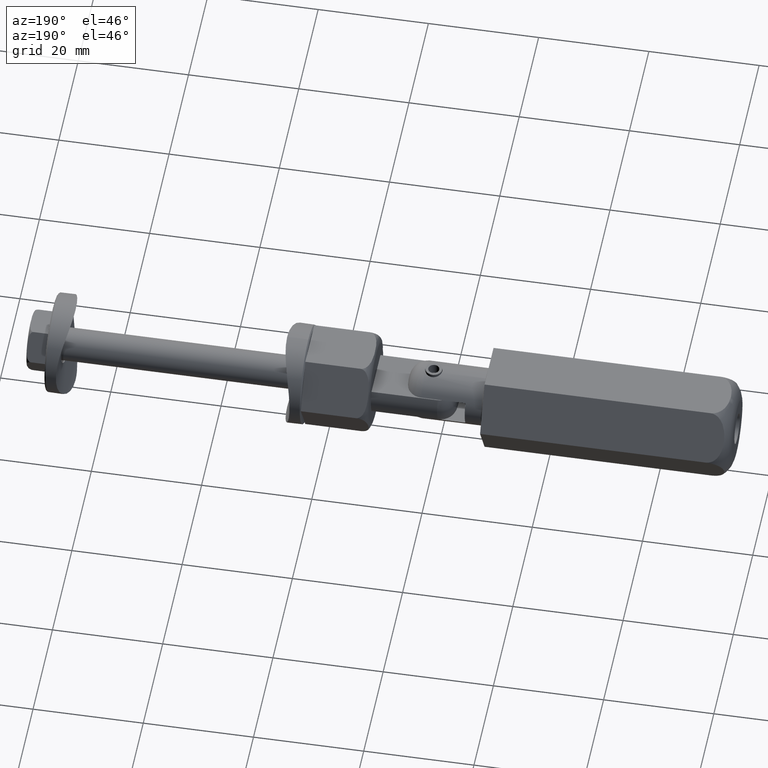
[diagram: clean part render]
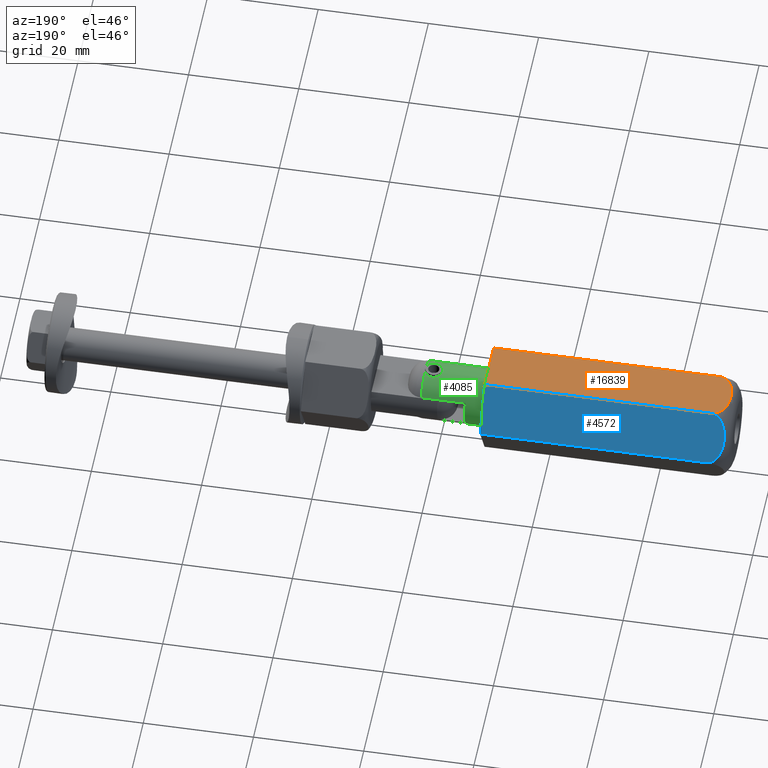
[diagram: same view with three faces highlighted in distinct colors, each labeled with its STEP entity id]
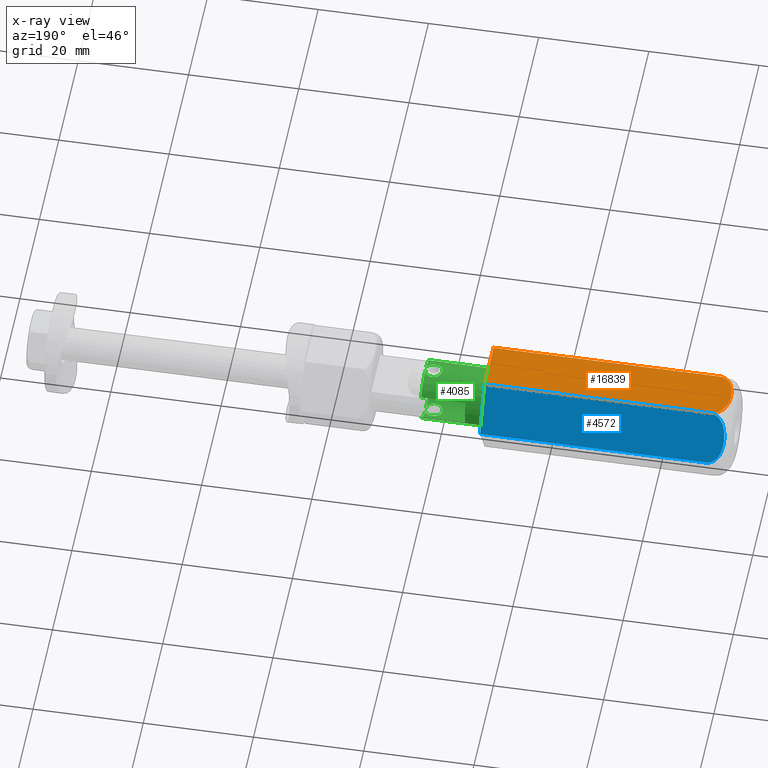
[diagram: x-ray of the same camera — body ghosted, the three highlighted faces saturated]
A machine part, auxiliary view with three faces highlighted in distinct colors.
The next image is the same camera in x-ray (body ghosted, the three faces saturated) — at least one of them is partly hidden behind the body in this view.
Their STEP definitions:

[orange] entity #16839 — the highlighted planar face has unit normal (0, 0, -1).
#320 = CARTESIAN_POINT ( 'NONE',  ( -1.769137840282685528E-15, -9.237604307034015250, 45.00000000000000000 ) ) ;
#350 = DIRECTION ( 'NONE',  ( 0.8660254037844387076, 0.4999999999999999445, 0.000000000000000000 ) ) ;
#480 = VERTEX_POINT ( 'NONE', #1590 ) ;
#558 = CARTESIAN_POINT ( 'NONE',  ( 0.7485458506218656272, -8.805431158676700676, 42.75669433309089840 ) ) ;
#613 = CARTESIAN_POINT ( 'NONE',  ( 3.572823925020929270, -7.174833452156046398, 43.88225172653203288 ) ) ;
#674 = CARTESIAN_POINT ( 'NONE',  ( 0.1991618949743121647, -9.122618133358280090, 41.97415419835533612 ) ) ;
#750 = ORIENTED_EDGE ( 'NONE', *, *, #12425, .T. ) ;
#1097 = CARTESIAN_POINT ( 'NONE',  ( -1.769137840282685528E-15, -9.237604307034015250, 40.99999999999999289 ) ) ;
#1373 = DIRECTION ( 'NONE',  ( -0.4999999999999999445, 0.8660254037844387076, 0.000000000000000000 ) ) ;
#1590 = CARTESIAN_POINT ( 'NONE',  ( -1.769137840282685528E-15, -9.237604307034015250, 0.000000000000000000 ) ) ;
#1953 = CARTESIAN_POINT ( 'NONE',  ( -1.769137840282685528E-15, -9.237604307034015250, 40.99999999999999289 ) ) ;
#2140 = CARTESIAN_POINT ( 'NONE',  ( 0.5871213750183053026, -8.898629623120211107, 42.58301006518296106 ) ) ;
#3438 = CARTESIAN_POINT ( 'NONE',  ( 1.673678568543905953, -8.271305534948281135, 43.40554057758357942 ) ) ;
#4403 = CARTESIAN_POINT ( 'NONE',  ( 7.250281961278693288, -5.051652064989072599, 42.74896336844649625 ) ) ;
#4527 = CARTESIAN_POINT ( 'NONE',  ( 8.000000000000012434, -4.618802153517002296, 41.25468682717439606 ) ) ;
#4825 = EDGE_CURVE ( 'NONE', #10863, #7293, #10417, .T. ) ;
#5169 = LINE ( 'NONE', #10312, #14367 ) ;
#5644 = DIRECTION ( 'NONE',  ( -0.8660254037844385966, -0.4999999999999998890, 0.000000000000000000 ) ) ;
#5768 = PLANE ( 'NONE',  #5848 ) ;
#5848 = AXIS2_PLACEMENT_3D ( 'NONE', #14163, #1373, #5644 ) ;
#5992 = CARTESIAN_POINT ( 'NONE',  ( 8.000000000000005329, -4.618802153517001408, 40.99999999999999289 ) ) ;
#6008 = FACE_OUTER_BOUND ( 'NONE', #18007, .T. ) ;
#6169 = CARTESIAN_POINT ( 'NONE',  ( 0.04306599320267236880, -9.212740144265529452, 41.50668772745576263 ) ) ;
#6295 = CARTESIAN_POINT ( 'NONE',  ( 0.3138699201869741828, -9.056391424123539480, 42.19438614450636749 ) ) ;
#7293 = VERTEX_POINT ( 'NONE', #1097 ) ;
#7411 = CARTESIAN_POINT ( 'NONE',  ( 7.841277760696346633, -4.710440481105351296, 41.85383690137562240 ) ) ;
#7474 = CARTESIAN_POINT ( 'NONE',  ( 7.682883363200835980, -4.801889529137512547, 42.18434787125504926 ) ) ;
#7718 = CARTESIAN_POINT ( 'NONE',  ( 3.788286301990712257, -7.050436190812304105, 43.89306722057520460 ) ) ;
#7725 = DIRECTION ( 'NONE',  ( -0.000000000000000000, -0.000000000000000000, -1.000000000000000000 ) ) ;
#7778 = CARTESIAN_POINT ( 'NONE',  ( -9.563346434566268250E-13, -9.237604307034564144, 41.25421066781149904 ) ) ;
#7950 = ORIENTED_EDGE ( 'NONE', *, *, #13762, .F. ) ;
#8617 = CARTESIAN_POINT ( 'NONE',  ( 6.907344896271229828, -5.249646871786233682, 43.05448962635249899 ) ) ;
#8846 = DIRECTION ( 'NONE',  ( -0.000000000000000000, -0.000000000000000000, -1.000000000000000000 ) ) ;
#8929 = VERTEX_POINT ( 'NONE', #14630 ) ;
#9047 = CARTESIAN_POINT ( 'NONE',  ( 4.433623702003368194, -6.677850469196864758, 43.89271815893955875 ) ) ;
#9187 = ORIENTED_EDGE ( 'NONE', *, *, #17669, .T. ) ;
#10013 = CARTESIAN_POINT ( 'NONE',  ( 6.717923926699392645, -5.359009119558693968, 43.18472171354525102 ) ) ;
#10086 = CARTESIAN_POINT ( 'NONE',  ( 7.620672937511835165, -4.837806735155458782, 42.28713500885484677 ) ) ;
#10312 = CARTESIAN_POINT ( 'NONE',  ( 8.000000000000000000, -4.618802153517008513, 45.00000000000000000 ) ) ;
#10417 = B_SPLINE_CURVE_WITH_KNOTS ( 'NONE', 3,
 ( #5992, #4527, #15772, #7411, #15583, #7474, #10086, #17164, #12787, #4403, #16977, #8617, #10013, #11932, #17405, #14558, #9047, #7718, #613, #13098, #16128, #11686, #10516, #11803, #3438, #14613, #14675, #558, #2140, #6295, #674, #6169, #7778, #1953 ),
 .UNSPECIFIED., .F., .F.,
 ( 4, 2, 2, 2, 2, 2, 2, 2, 2, 2, 2, 2, 2, 2, 2, 2, 4 ),
 ( 1.959244678688549525E-07, 0.0007486943119338412226, 0.001122943505666818692, 0.001497192699399795728, 0.001871441893132772981, 0.002245691086865750016, 0.002994189474331693246, 0.004491186249263580572, 0.005988183024195467899, 0.006736681411661409394, 0.007485179799127351756, 0.008233678186593292384, 0.008982176574059233878, 0.009730674961525175373, 0.01047917334899111860, 0.01122767173645706010, 0.01197617012392300159 ),
 .UNSPECIFIED. ) ;
#10516 = CARTESIAN_POINT ( 'NONE',  ( 2.289826092884529540, -7.915572595909701192, 43.64835411522503250 ) ) ;
#10863 = VERTEX_POINT ( 'NONE', #15952 ) ;
#11686 = CARTESIAN_POINT ( 'NONE',  ( 2.499462744038905893, -7.794538818933711255, 43.70835956831879798 ) ) ;
#11803 = CARTESIAN_POINT ( 'NONE',  ( 1.877673606444074883, -8.153528944903269959, 43.49732817391966222 ) ) ;
#11932 = CARTESIAN_POINT ( 'NONE',  ( 6.132795820946559395, -5.696832988925506491, 43.51479239094585694 ) ) ;
#12425 = EDGE_CURVE ( 'NONE', #480, #8929, #17826, .T. ) ;
#12787 = CARTESIAN_POINT ( 'NONE',  ( 7.408064604950721055, -4.960556213191575026, 42.57629628855898574 ) ) ;
#13098 = CARTESIAN_POINT ( 'NONE',  ( 3.141149563985607074, -7.424060760702047901, 43.83720161989546682 ) ) ;
#13242 = VECTOR ( 'NONE', #7725, 1000.000000000000000 ) ;
#13677 = LINE ( 'NONE', #320, #13242 ) ;
#13762 = EDGE_CURVE ( 'NONE', #10863, #8929, #5169, .T. ) ;
#14163 = CARTESIAN_POINT ( 'NONE',  ( -1.769137840282685528E-15, -9.237604307034015250, 45.00000000000000000 ) ) ;
#14367 = VECTOR ( 'NONE', #8846, 1000.000000000000000 ) ;
#14558 = CARTESIAN_POINT ( 'NONE',  ( 4.862494959047610976, -6.430241533494677419, 43.85019408832059895 ) ) ;
#14613 = CARTESIAN_POINT ( 'NONE',  ( 1.282681821586987736, -8.497047612056125132, 43.18514700619215319 ) ) ;
#14630 = CARTESIAN_POINT ( 'NONE',  ( 8.000000000000000000, -4.618802153517008513, 0.000000000000000000 ) ) ;
#14675 = CARTESIAN_POINT ( 'NONE',  ( 1.096546558772386160, -8.604512856147820798, 43.05745001845091480 ) ) ;
#15583 = CARTESIAN_POINT ( 'NONE',  ( 7.793015511654325600, -4.738304703581460942, 41.96820820789258022 ) ) ;
#15772 = CARTESIAN_POINT ( 'NONE',  ( 7.958754141321140452, -4.642615461128206000, 41.49961142492604438 ) ) ;
#15952 = CARTESIAN_POINT ( 'NONE',  ( 8.000000000000005329, -4.618802153517001408, 40.99999999999999289 ) ) ;
#16128 = CARTESIAN_POINT ( 'NONE',  ( 2.924613554202805332, -7.549077884239397740, 43.80277072359240975 ) ) ;
#16514 = VECTOR ( 'NONE', #350, 1000.000000000000000 ) ;
#16839 = ADVANCED_FACE ( 'NONE', ( #6008 ), #5768, .F. ) ;
#16977 = CARTESIAN_POINT ( 'NONE',  ( 7.167243481371884606, -5.099594353716367046, 42.82926552586378932 ) ) ;
#17164 = CARTESIAN_POINT ( 'NONE',  ( 7.483326103351932268, -4.917103966830023154, 42.48315152179991827 ) ) ;
#17382 = CARTESIAN_POINT ( 'NONE',  ( -1.769137840282685528E-15, -9.237604307034015250, 0.000000000000000000 ) ) ;
#17405 = CARTESIAN_POINT ( 'NONE',  ( 5.716877360636622107, -5.936963623946379442, 43.66016978902230505 ) ) ;
#17669 = EDGE_CURVE ( 'NONE', #7293, #480, #13677, .T. ) ;
#17826 = LINE ( 'NONE', #17382, #16514 ) ;
#18007 = EDGE_LOOP ( 'NONE', ( #7950, #18035, #9187, #750 ) ) ;
#18035 = ORIENTED_EDGE ( 'NONE', *, *, #4825, .T. ) ;

[blue] entity #4572 — the highlighted planar face has unit normal (-0, -0.866, -0.5).
#145 = EDGE_CURVE ( 'NONE', #8929, #4853, #18096, .T. ) ;
#422 = CARTESIAN_POINT ( 'NONE',  ( 8.000000000000001776, 3.940089428908967406, 42.58398726992948014 ) ) ;
#487 = CARTESIAN_POINT ( 'NONE',  ( 8.000000000000001776, 0.4890779393766487293, 43.89370197131172091 ) ) ;
#552 = CARTESIAN_POINT ( 'NONE',  ( 8.000000000000000000, -2.692139927352141804, 43.40298864242615196 ) ) ;
#913 = EDGE_LOOP ( 'NONE', ( #4020, #9609, #17634, #9438 ) ) ;
#1496 = VECTOR ( 'NONE', #12865, 1000.000000000000000 ) ;
#1546 = CARTESIAN_POINT ( 'NONE',  ( 8.000000000000000000, -4.618802153517008513, 0.000000000000000000 ) ) ;
#1831 = CARTESIAN_POINT ( 'NONE',  ( 8.000000000000001776, -0.5144506521284709644, 43.89218239036202363 ) ) ;
#1946 = CARTESIAN_POINT ( 'NONE',  ( 8.000000000000001776, 3.753179266618492438, 42.75771142931566260 ) ) ;
#2134 = AXIS2_PLACEMENT_3D ( 'NONE', #9538, #4932, #7667 ) ;
#3310 = CARTESIAN_POINT ( 'NONE',  ( 8.000000000000003553, 3.352786703269217572, 43.05726288905571408 ) ) ;
#4020 = ORIENTED_EDGE ( 'NONE', *, *, #10195, .F. ) ;
#4572 = ADVANCED_FACE ( 'NONE', ( #14696 ), #7441, .F. ) ;
#4713 = CARTESIAN_POINT ( 'NONE',  ( 8.000000000000001776, 0.9924995606820768979, 43.85060076674451324 ) ) ;
#4776 = CARTESIAN_POINT ( 'NONE',  ( 8.000000000000000000, -3.358808912604403840, 43.05353553000416866 ) ) ;
#4853 = VERTEX_POINT ( 'NONE', #9394 ) ;
#4932 = DIRECTION ( 'NONE',  ( -1.000000000000000000, 1.877893248421449282E-16, 0.000000000000000000 ) ) ;
#5169 = LINE ( 'NONE', #10312, #14367 ) ;
#5209 = VECTOR ( 'NONE', #17570, 1000.000000000000000 ) ;
#5922 = CARTESIAN_POINT ( 'NONE',  ( 8.000000000000010658, 4.618802153516997855, 40.99999999999999289 ) ) ;
#6046 = CARTESIAN_POINT ( 'NONE',  ( 8.000000000000001776, 4.434660508883089491, 41.85564048095637446 ) ) ;
#6160 = CARTESIAN_POINT ( 'NONE',  ( 8.000000000000000000, -3.942926262521257552, 42.58076650204093738 ) ) ;
#6472 = CARTESIAN_POINT ( 'NONE',  ( 8.000000000000001776, -4.618802153517020948, 41.25059084096967865 ) ) ;
#7405 = CARTESIAN_POINT ( 'NONE',  ( 8.000000000000000000, 4.569904609268164108, 41.50382558259673260 ) ) ;
#7422 = EDGE_CURVE ( 'NONE', #9886, #10863, #16716, .T. ) ;
#7441 = PLANE ( 'NONE',  #2134 ) ;
#7469 = CARTESIAN_POINT ( 'NONE',  ( 7.999999999999998224, -1.009007826064906688, 43.84811376209939482 ) ) ;
#7667 = DIRECTION ( 'NONE',  ( -1.877893248421449282E-16, -1.000000000000000000, 0.000000000000000000 ) ) ;
#7821 = CARTESIAN_POINT ( 'NONE',  ( 8.000000000000001776, 4.618802153517005848, 45.00000000000000000 ) ) ;
#8803 = CARTESIAN_POINT ( 'NONE',  ( 8.000000000000003553, 4.618802153517022724, 41.25024699729215172 ) ) ;
#8846 = DIRECTION ( 'NONE',  ( -0.000000000000000000, -0.000000000000000000, -1.000000000000000000 ) ) ;
#8861 = CARTESIAN_POINT ( 'NONE',  ( 8.000000000000003553, 3.135350852326893367, 43.18648338403921372 ) ) ;
#8917 = CARTESIAN_POINT ( 'NONE',  ( 8.000000000000001776, 4.178113488848268275, 42.29076242024786580 ) ) ;
#8929 = VERTEX_POINT ( 'NONE', #14630 ) ;
#8980 = CARTESIAN_POINT ( 'NONE',  ( 8.000000000000000000, -4.256979566995696906, 42.19333027108968537 ) ) ;
#9394 = CARTESIAN_POINT ( 'NONE',  ( 8.000000000000001776, 4.618802153517005848, 0.000000000000000000 ) ) ;
#9438 = ORIENTED_EDGE ( 'NONE', *, *, #145, .T. ) ;
#9538 = CARTESIAN_POINT ( 'NONE',  ( 8.000000000000000000, -4.618802153517008513, 45.00000000000000000 ) ) ;
#9609 = ORIENTED_EDGE ( 'NONE', *, *, #7422, .T. ) ;
#9886 = VERTEX_POINT ( 'NONE', #17013 ) ;
#10078 = CARTESIAN_POINT ( 'NONE',  ( 8.000000000000000000, -4.389744536411927633, 41.97252492910909893 ) ) ;
#10195 = EDGE_CURVE ( 'NONE', #9886, #4853, #12208, .T. ) ;
#10204 = CARTESIAN_POINT ( 'NONE',  ( 8.000000000000000000, 1.979118624766899037, 43.66106815119476892 ) ) ;
#10312 = CARTESIAN_POINT ( 'NONE',  ( 8.000000000000000000, -4.618802153517008513, 45.00000000000000000 ) ) ;
#10326 = CARTESIAN_POINT ( 'NONE',  ( 8.000000000000000000, -3.141993594239491205, 43.18269222871840185 ) ) ;
#10643 = CARTESIAN_POINT ( 'NONE',  ( 8.000000000000001776, -4.569835532510474252, 41.50396219016342769 ) ) ;
#10863 = VERTEX_POINT ( 'NONE', #15952 ) ;
#11559 = CARTESIAN_POINT ( 'NONE',  ( 8.000000000000001776, 4.378802633394879962, 41.97022636655232475 ) ) ;
#12208 = LINE ( 'NONE', #7821, #5209 ) ;
#12865 = DIRECTION ( 'NONE',  ( 1.877893248421449036E-16, 1.000000000000000000, 0.000000000000000000 ) ) ;
#13093 = CARTESIAN_POINT ( 'NONE',  ( 8.000000000000000000, -1.979342744620956385, 43.64712767648819636 ) ) ;
#13762 = EDGE_CURVE ( 'NONE', #10863, #8929, #5169, .T. ) ;
#14367 = VECTOR ( 'NONE', #8846, 1000.000000000000000 ) ;
#14553 = CARTESIAN_POINT ( 'NONE',  ( 8.000000000000000000, -3.761260575362187275, 42.75085960661601092 ) ) ;
#14630 = CARTESIAN_POINT ( 'NONE',  ( 8.000000000000000000, -4.618802153517008513, 0.000000000000000000 ) ) ;
#14696 = FACE_OUTER_BOUND ( 'NONE', #913, .T. ) ;
#15822 = CARTESIAN_POINT ( 'NONE',  ( 8.000000000000000000, 4.250374132032897379, 42.18784112892849691 ) ) ;
#15883 = CARTESIAN_POINT ( 'NONE',  ( 8.000000000000000000, -2.455983556934949963, 43.49539654174239445 ) ) ;
#15952 = CARTESIAN_POINT ( 'NONE',  ( 8.000000000000005329, -4.618802153517001408, 40.99999999999999289 ) ) ;
#16716 = B_SPLINE_CURVE_WITH_KNOTS ( 'NONE', 3,
 ( #5922, #8803, #7405, #6046, #11559, #15822, #8917, #422, #1946, #3310, #8861, #17338, #10204, #4713, #487, #1831, #7469, #17215, #13093, #15883, #552, #10326, #4776, #14553, #6160, #8980, #10078, #10643, #6472, #17523 ),
 .UNSPECIFIED., .F., .F.,
 ( 4, 2, 2, 2, 2, 2, 2, 2, 2, 2, 2, 2, 2, 2, 4 ),
 ( 0.01782495609688745583, 0.01856757966647357497, 0.01893889145126662760, 0.01931020323605967676, 0.02005282680564577855, 0.02079545037523188034, 0.02228069751440409085, 0.02376594465357630137, 0.02525119179274851536, 0.02599381536233462062, 0.02673643893192072588, 0.02747906250150683460, 0.02822168607109293986, 0.02896430964067904512, 0.02970693321026515038 ),
 .UNSPECIFIED. ) ;
#17013 = CARTESIAN_POINT ( 'NONE',  ( 8.000000000000010658, 4.618802153516997855, 40.99999999999999289 ) ) ;
#17215 = CARTESIAN_POINT ( 'NONE',  ( 7.999999999999998224, -1.738355429357148818, 43.70696732715698118 ) ) ;
#17338 = CARTESIAN_POINT ( 'NONE',  ( 8.000000000000001776, 2.456531719451064522, 43.51726223093300661 ) ) ;
#17523 = CARTESIAN_POINT ( 'NONE',  ( 8.000000000000005329, -4.618802153517001408, 40.99999999999999289 ) ) ;
#17570 = DIRECTION ( 'NONE',  ( -0.000000000000000000, -0.000000000000000000, -1.000000000000000000 ) ) ;
#17634 = ORIENTED_EDGE ( 'NONE', *, *, #13762, .T. ) ;
#18096 = LINE ( 'NONE', #1546, #1496 ) ;

[green] entity #4085 — the highlighted cylindrical surface (bore or boss wall) has radius 5.2 mm, axis along (-1, -0, 0).
#28 = CARTESIAN_POINT ( 'NONE',  ( -4.963419302966182833, 1.551308160510958878, 19.69710669182161311 ) ) ;
#89 = CIRCLE ( 'NONE', #1866, 5.200000000000000178 ) ;
#119 = B_SPLINE_CURVE_WITH_KNOTS ( 'NONE', 3,
 ( #9439, #12314, #5350, #16510, #1193, #15180, #6815, #8208, #17963, #13866, #8261, #11045, #2654, #18025, #12424, #9673, #4174, #14040, #13977, #9918, #11291, #13920, #12554, #8510, #2897, #1368, #5525, #1484, #8388, #4110, #12678, #3022, #5583, #14098, #28, #7121, #12747, #9795, #14159, #11163 ),
 .UNSPECIFIED., .F., .F.,
 ( 4, 2, 2, 2, 2, 2, 2, 2, 2, 2, 2, 2, 2, 2, 2, 2, 2, 2, 2, 4 ),
 ( 0.000000000000000000, 0.0005598525982423902024, 0.001119705196484780839, 0.001399631495605971549, 0.001679557794727162476, 0.001959484093848353620, 0.002239410392969544330, 0.002799262991211936159, 0.003359115589454328421, 0.003918968187696721117, 0.004478820785939112946, 0.004758747085060309294, 0.005038673384181505642, 0.005318599683302701123, 0.005598525982423897471, 0.006158378580666290167, 0.006718231178908681996, 0.007278083777151073824, 0.007837936375393466520, 0.008957641571878251913 ),
 .UNSPECIFIED. ) ;
#193 = EDGE_CURVE ( 'NONE', #3478, #13182, #12030, .T. ) ;
#341 = EDGE_CURVE ( 'NONE', #15872, #3754, #6065, .T. ) ;
#658 = CARTESIAN_POINT ( 'NONE',  ( 4.992942698729907924, -1.455625987037639568, 18.95552469952957964 ) ) ;
#729 = CARTESIAN_POINT ( 'NONE',  ( 5.012657568153981558, -1.387386056122674738, 20.23568348984982634 ) ) ;
#797 = CARTESIAN_POINT ( 'NONE',  ( 5.152267510464767497, 0.7242857316404366363, 18.13711539098697756 ) ) ;
#831 = VERTEX_POINT ( 'NONE', #11232 ) ;
#877 = DIRECTION ( 'NONE',  ( 1.000000000000000000, 0.000000000000000000, 0.000000000000000000 ) ) ;
#1193 = CARTESIAN_POINT ( 'NONE',  ( -5.065918281851200966, -1.178172400145128806, 20.54421818276737710 ) ) ;
#1226 = LINE ( 'NONE', #14269, #16105 ) ;
#1352 = FACE_OUTER_BOUND ( 'NONE', #13778, .T. ) ;
#1368 = CARTESIAN_POINT ( 'NONE',  ( -5.161807639010361548, 0.6351664433079620142, 18.10304574700393232 ) ) ;
#1484 = CARTESIAN_POINT ( 'NONE',  ( -5.125743644908775210, 0.8793316977657467115, 18.24019997671928550 ) ) ;
#1644 = AXIS2_PLACEMENT_3D ( 'NONE', #3927, #2532, #12365 ) ;
#1866 = AXIS2_PLACEMENT_3D ( 'NONE', #17438, #6456, #9084 ) ;
#1980 = VECTOR ( 'NONE', #13285, 1000.000000000000000 ) ;
#2021 = CARTESIAN_POINT ( 'NONE',  ( -2.499999999999999556, -4.559605246071198437, 13.00000000000000000 ) ) ;
#2025 = ORIENTED_EDGE ( 'NONE', *, *, #16414, .F. ) ;
#2048 = VECTOR ( 'NONE', #11107, 1000.000000000000000 ) ;
#2127 = CARTESIAN_POINT ( 'NONE',  ( 5.092303615408305895, -1.074591897270581686, 20.69725271704484726 ) ) ;
#2137 = CARTESIAN_POINT ( 'NONE',  ( -5.185315805233089215, 0.3905124837953182215, 21.01999999999999957 ) ) ;
#2185 = CARTESIAN_POINT ( 'NONE',  ( 5.189232498523272064, 0.3772484548923304426, 18.00519200352507099 ) ) ;
#2198 = VERTEX_POINT ( 'NONE', #13030 ) ;
#2266 = VECTOR ( 'NONE', #17290, 1000.000000000000000 ) ;
#2281 = VERTEX_POINT ( 'NONE', #17745 ) ;
#2308 = CARTESIAN_POINT ( 'NONE',  ( 4.963832099636205974, 1.549362687245473102, 19.41643936243161761 ) ) ;
#2352 = EDGE_CURVE ( 'NONE', #3478, #8155, #5752, .T. ) ;
#2532 = DIRECTION ( 'NONE',  ( 0.000000000000000000, 0.000000000000000000, 1.000000000000000000 ) ) ;
#2632 = EDGE_CURVE ( 'NONE', #4849, #2198, #17752, .T. ) ;
#2654 = CARTESIAN_POINT ( 'NONE',  ( -4.963832099636203310, -1.549362687245472214, 19.41643936243161406 ) ) ;
#2691 = AXIS2_PLACEMENT_3D ( 'NONE', #17654, #3512, #6499 ) ;
#2897 = CARTESIAN_POINT ( 'NONE',  ( -5.180293827615185975, 0.4607063841778071822, 18.03711585301954656 ) ) ;
#3022 = CARTESIAN_POINT ( 'NONE',  ( -4.992942698729907924, 1.455625987037639568, 18.95552469952957964 ) ) ;
#3429 = CARTESIAN_POINT ( 'NONE',  ( 2.500000000000000444, -4.559605246071198437, 24.01999999999999957 ) ) ;
#3439 = EDGE_CURVE ( 'NONE', #2281, #2281, #6828, .T. ) ;
#3478 = VERTEX_POINT ( 'NONE', #3986 ) ;
#3512 = DIRECTION ( 'NONE',  ( -0.000000000000000000, -0.000000000000000000, -1.000000000000000000 ) ) ;
#3538 = CARTESIAN_POINT ( 'NONE',  ( 5.157779211577867784, -0.7561497943237692754, 20.92480937713154532 ) ) ;
#3654 = CARTESIAN_POINT ( 'NONE',  ( 5.125720386140659279, 0.8870922200615721787, 18.23561029644231013 ) ) ;
#3706 = CARTESIAN_POINT ( 'NONE',  ( 5.112242260058695642, -0.9539653343543746944, 18.29480758178761945 ) ) ;
#3754 = VERTEX_POINT ( 'NONE', #9374 ) ;
#3927 = CARTESIAN_POINT ( 'NONE',  ( 0.000000000000000000, 0.000000000000000000, 10.00000000000000000 ) ) ;
#3948 = ORIENTED_EDGE ( 'NONE', *, *, #12827, .T. ) ;
#3986 = CARTESIAN_POINT ( 'NONE',  ( 2.499999999999999556, 4.559605246071198437, 13.00000000000000000 ) ) ;
#4085 = ADVANCED_FACE ( 'NONE', ( #5508, #1352 ), #16234, .T. ) ;
#4110 = CARTESIAN_POINT ( 'NONE',  ( -5.070182908683328549, 1.163412399459048618, 18.47905962132104563 ) ) ;
#4174 = CARTESIAN_POINT ( 'NONE',  ( -5.070019454879777676, -1.163978011361160192, 18.47993043186212958 ) ) ;
#4245 = ORIENTED_EDGE ( 'NONE', *, *, #2632, .T. ) ;
#4351 = LINE ( 'NONE', #3429, #1980 ) ;
#4648 = CARTESIAN_POINT ( 'NONE',  ( 5.185315805233082109, 0.3905124837953178329, 21.01999999999999957 ) ) ;
#4661 = CARTESIAN_POINT ( 'NONE',  ( -2.500000000000000444, 4.559605246071198437, 21.01999999999999957 ) ) ;
#4721 = CARTESIAN_POINT ( 'NONE',  ( -2.499999999999999556, -4.559605246071198437, 24.01999999999999957 ) ) ;
#4849 = VERTEX_POINT ( 'NONE', #2021 ) ;
#5001 = CARTESIAN_POINT ( 'NONE',  ( 5.197476565135879412, -0.1864769919608537663, 17.97840258895527654 ) ) ;
#5021 = ORIENTED_EDGE ( 'NONE', *, *, #16314, .T. ) ;
#5065 = CARTESIAN_POINT ( 'NONE',  ( 4.974834454550790319, 1.513815560048023645, 19.13808296806132958 ) ) ;
#5119 = CARTESIAN_POINT ( 'NONE',  ( 5.070182908683328549, -1.163412399459048618, 18.47905962132104563 ) ) ;
#5229 = ORIENTED_EDGE ( 'NONE', *, *, #341, .T. ) ;
#5350 = CARTESIAN_POINT ( 'NONE',  ( -5.149052219805461128, -0.7424365688772112115, 20.89337175782948464 ) ) ;
#5508 = FACE_OUTER_BOUND ( 'NONE', #8797, .T. ) ;
#5525 = CARTESIAN_POINT ( 'NONE',  ( -5.150492418112917470, 0.7203471378298392791, 18.14442290826530879 ) ) ;
#5583 = CARTESIAN_POINT ( 'NONE',  ( -4.975094813050258580, 1.512969041170334039, 19.13378771926181088 ) ) ;
#5685 = AXIS2_PLACEMENT_3D ( 'NONE', #16828, #12765, #11122 ) ;
#5737 = ORIENTED_EDGE ( 'NONE', *, *, #16159, .T. ) ;
#5752 = LINE ( 'NONE', #8262, #2048 ) ;
#6065 = B_SPLINE_CURVE_WITH_KNOTS ( 'NONE', 3,
 ( #14901, #11913, #14839, #16170, #15998, #6282, #7763, #11852, #12032, #7636, #10498, #7820, #2308, #5065, #12092, #13400, #9209, #3654, #797, #2185, #13519, #16235, #5001, #6406, #6338, #17393, #7702, #7873, #3706, #5119, #9033, #658, #13331, #17447, #10569, #9099, #729, #2127, #3538, #14719 ),
 .UNSPECIFIED., .F., .F.,
 ( 4, 2, 2, 2, 2, 2, 2, 2, 2, 2, 2, 2, 2, 2, 2, 2, 2, 2, 2, 4 ),
 ( 0.000000000000000000, 0.0005598525982423900940, 0.001119705196484780839, 0.001399631495605971549, 0.001679557794727162476, 0.001959484093848353186, 0.002239410392969544330, 0.002799262991211936159, 0.003359115589454328421, 0.003918968187696720250, 0.004478820785939112946, 0.004758747085060308427, 0.005038673384181504775, 0.005318599683302700255, 0.005598525982423896603, 0.006158378580666289299, 0.006718231178908680261, 0.007278083777151072090, 0.007837936375393464786, 0.008957641571878250178 ),
 .UNSPECIFIED. ) ;
#6282 = CARTESIAN_POINT ( 'NONE',  ( 5.026037881066793389, 1.334858711173626089, 20.31328777489486370 ) ) ;
#6286 = CARTESIAN_POINT ( 'NONE',  ( 0.000000000000000000, 0.000000000000000000, 21.01999999999999957 ) ) ;
#6301 = CIRCLE ( 'NONE', #5685, 5.200000000000000178 ) ;
#6338 = CARTESIAN_POINT ( 'NONE',  ( 5.180293827615185975, -0.4607063841778070712, 18.03711585301954656 ) ) ;
#6406 = CARTESIAN_POINT ( 'NONE',  ( 5.187571543712021338, -0.3709956772479742759, 18.01213447093784836 ) ) ;
#6456 = DIRECTION ( 'NONE',  ( -0.000000000000000000, -0.000000000000000000, -1.000000000000000000 ) ) ;
#6499 = DIRECTION ( 'NONE',  ( 1.000000000000000000, -8.881784197001252323E-16, 0.000000000000000000 ) ) ;
#6656 = CIRCLE ( 'NONE', #2691, 5.200000000000000178 ) ;
#6815 = CARTESIAN_POINT ( 'NONE',  ( -5.013770641787218985, -1.379720785239227254, 20.23238105303929402 ) ) ;
#6828 = CIRCLE ( 'NONE', #1644, 5.200000000000000178 ) ;
#6973 = ORIENTED_EDGE ( 'NONE', *, *, #13469, .T. ) ;
#6997 = AXIS2_PLACEMENT_3D ( 'NONE', #6286, #16062, #17450 ) ;
#7121 = CARTESIAN_POINT ( 'NONE',  ( -4.989915887724341026, 1.463840025194481642, 20.06322754881772141 ) ) ;
#7170 = DIRECTION ( 'NONE',  ( -0.000000000000000000, -0.000000000000000000, -1.000000000000000000 ) ) ;
#7480 = ORIENTED_EDGE ( 'NONE', *, *, #9824, .T. ) ;
#7559 = EDGE_CURVE ( 'NONE', #12719, #831, #4351, .T. ) ;
#7636 = CARTESIAN_POINT ( 'NONE',  ( 4.970175106068984050, 1.529012674814987705, 19.79086488209292227 ) ) ;
#7702 = CARTESIAN_POINT ( 'NONE',  ( 5.150492418112917470, -0.7203471378298392791, 18.14442290826530879 ) ) ;
#7763 = CARTESIAN_POINT ( 'NONE',  ( 5.013770641787218985, 1.379720785239227254, 20.23238105303929402 ) ) ;
#7820 = CARTESIAN_POINT ( 'NONE',  ( 4.962745404860847920, 1.552799765921212938, 19.51185143345809081 ) ) ;
#7873 = CARTESIAN_POINT ( 'NONE',  ( 5.125743644908775210, -0.8793316977657467115, 18.24019997671928550 ) ) ;
#8017 = CARTESIAN_POINT ( 'NONE',  ( 0.000000000000000000, 0.000000000000000000, 24.01999999999999957 ) ) ;
#8140 = VERTEX_POINT ( 'NONE', #9532 ) ;
#8155 = VERTEX_POINT ( 'NONE', #17833 ) ;
#8208 = CARTESIAN_POINT ( 'NONE',  ( -4.992479766040922584, -1.454878441430944580, 20.06262780117681999 ) ) ;
#8241 = DIRECTION ( 'NONE',  ( -0.000000000000000000, -0.000000000000000000, -1.000000000000000000 ) ) ;
#8261 = CARTESIAN_POINT ( 'NONE',  ( -4.965954603790082800, -1.542505734060174882, 19.69868847912818666 ) ) ;
#8262 = CARTESIAN_POINT ( 'NONE',  ( 2.499999999999999556, 4.559605246071198437, 24.01999999999999957 ) ) ;
#8388 = CARTESIAN_POINT ( 'NONE',  ( -5.112242260058695642, 0.9539653343543748054, 18.29480758178761945 ) ) ;
#8510 = CARTESIAN_POINT ( 'NONE',  ( -5.187571543712021338, 0.3709956772479743314, 18.01213447093784836 ) ) ;
#8667 = AXIS2_PLACEMENT_3D ( 'NONE', #13497, #9299, #877 ) ;
#8797 = EDGE_LOOP ( 'NONE', ( #10815, #12897, #5737, #5229, #7480, #15087, #2025, #4245, #5021, #9271, #6973, #3948 ) ) ;
#9033 = CARTESIAN_POINT ( 'NONE',  ( 5.040932359534628482, -1.279579912915253637, 18.62548637492530546 ) ) ;
#9084 = DIRECTION ( 'NONE',  ( 1.000000000000000000, 8.881784197001252323E-16, 0.000000000000000000 ) ) ;
#9099 = CARTESIAN_POINT ( 'NONE',  ( 4.989915887724341026, -1.463840025194481642, 20.06322754881772141 ) ) ;
#9209 = CARTESIAN_POINT ( 'NONE',  ( 5.070019454879778564, 1.163978011361160192, 18.47993043186213313 ) ) ;
#9255 = AXIS2_PLACEMENT_3D ( 'NONE', #13547, #17483, #17711 ) ;
#9271 = ORIENTED_EDGE ( 'NONE', *, *, #10271, .T. ) ;
#9299 = DIRECTION ( 'NONE',  ( -0.000000000000000000, 0.000000000000000000, 1.000000000000000000 ) ) ;
#9374 = CARTESIAN_POINT ( 'NONE',  ( 5.185315805233089215, -0.3905124837953182215, 21.01999999999999957 ) ) ;
#9439 = CARTESIAN_POINT ( 'NONE',  ( -5.185315805233082109, -0.3905124837953178329, 21.01999999999999957 ) ) ;
#9532 = CARTESIAN_POINT ( 'NONE',  ( -5.185315805233082109, -0.3905124837953178329, 21.01999999999999957 ) ) ;
#9673 = CARTESIAN_POINT ( 'NONE',  ( -5.040396248244663369, -1.281618398286949123, 18.62874000622264248 ) ) ;
#9740 = CIRCLE ( 'NONE', #6997, 5.200000000000000178 ) ;
#9795 = CARTESIAN_POINT ( 'NONE',  ( -5.092303615408305895, 1.074591897270581020, 20.69725271704484726 ) ) ;
#9824 = EDGE_CURVE ( 'NONE', #3754, #12719, #6301, .T. ) ;
#9918 = CARTESIAN_POINT ( 'NONE',  ( -5.189232498523271175, -0.3772484548923318859, 18.00519200352507099 ) ) ;
#10271 = EDGE_CURVE ( 'NONE', #8140, #15950, #119, .T. ) ;
#10498 = CARTESIAN_POINT ( 'NONE',  ( 4.965954603790082800, 1.542505734060174882, 19.69868847912818666 ) ) ;
#10569 = CARTESIAN_POINT ( 'NONE',  ( 4.963419302966182833, -1.551308160510958878, 19.69710669182161311 ) ) ;
#10815 = ORIENTED_EDGE ( 'NONE', *, *, #193, .F. ) ;
#10915 = AXIS2_PLACEMENT_3D ( 'NONE', #8017, #8241, #17943 ) ;
#11045 = CARTESIAN_POINT ( 'NONE',  ( -4.962745404860847920, -1.552799765921213160, 19.51185143345809792 ) ) ;
#11107 = DIRECTION ( 'NONE',  ( 0.000000000000000000, 0.000000000000000000, 1.000000000000000000 ) ) ;
#11122 = DIRECTION ( 'NONE',  ( 1.000000000000000000, 0.000000000000000000, 0.000000000000000000 ) ) ;
#11163 = CARTESIAN_POINT ( 'NONE',  ( -5.185315805233089215, 0.3905124837953182215, 21.01999999999999957 ) ) ;
#11232 = CARTESIAN_POINT ( 'NONE',  ( 2.500000000000000444, -4.559605246071198437, 13.00000000000000000 ) ) ;
#11291 = CARTESIAN_POINT ( 'NONE',  ( -5.199937516046453823, -0.1885120218787895430, 17.97020962370499930 ) ) ;
#11852 = CARTESIAN_POINT ( 'NONE',  ( 4.992479766040922584, 1.454878441430944358, 20.06262780117681643 ) ) ;
#11913 = CARTESIAN_POINT ( 'NONE',  ( 5.171548689035651236, 0.5733154623767581226, 20.97240876985932445 ) ) ;
#12030 = CIRCLE ( 'NONE', #8667, 5.200000000000000178 ) ;
#12032 = CARTESIAN_POINT ( 'NONE',  ( 4.983398337013086099, 1.485348901567541846, 19.97275400021225877 ) ) ;
#12092 = CARTESIAN_POINT ( 'NONE',  ( 4.992902569751851871, 1.455700514223930320, 18.95623931653245009 ) ) ;
#12314 = CARTESIAN_POINT ( 'NONE',  ( -5.171548689035651236, -0.5733154623767583447, 20.97240876985932445 ) ) ;
#12365 = DIRECTION ( 'NONE',  ( 1.000000000000000000, 0.000000000000000000, 0.000000000000000000 ) ) ;
#12424 = CARTESIAN_POINT ( 'NONE',  ( -4.992902569751850983, -1.455700514223930320, 18.95623931653244654 ) ) ;
#12554 = CARTESIAN_POINT ( 'NONE',  ( -5.197476565135877635, 0.1864769919608542936, 17.97840258895527299 ) ) ;
#12678 = CARTESIAN_POINT ( 'NONE',  ( -5.040932359534628482, 1.279579912915253637, 18.62548637492530546 ) ) ;
#12719 = VERTEX_POINT ( 'NONE', #17891 ) ;
#12747 = CARTESIAN_POINT ( 'NONE',  ( -5.012657568153981558, 1.387386056122675404, 20.23568348984982634 ) ) ;
#12765 = DIRECTION ( 'NONE',  ( -0.000000000000000000, -0.000000000000000000, -1.000000000000000000 ) ) ;
#12827 = EDGE_CURVE ( 'NONE', #17643, #13182, #1226, .T. ) ;
#12897 = ORIENTED_EDGE ( 'NONE', *, *, #2352, .T. ) ;
#13030 = CARTESIAN_POINT ( 'NONE',  ( -2.499999999999999556, -4.559605246071199325, 21.01999999999999957 ) ) ;
#13182 = VERTEX_POINT ( 'NONE', #16481 ) ;
#13285 = DIRECTION ( 'NONE',  ( -0.000000000000000000, -0.000000000000000000, -1.000000000000000000 ) ) ;
#13331 = CARTESIAN_POINT ( 'NONE',  ( 4.975094813050258580, -1.512969041170334039, 19.13378771926181088 ) ) ;
#13400 = CARTESIAN_POINT ( 'NONE',  ( 5.040396248244661592, 1.281618398286949123, 18.62874000622264248 ) ) ;
#13469 = EDGE_CURVE ( 'NONE', #15950, #17643, #9740, .T. ) ;
#13497 = CARTESIAN_POINT ( 'NONE',  ( 0.000000000000000000, 0.000000000000000000, 13.00000000000000000 ) ) ;
#13519 = CARTESIAN_POINT ( 'NONE',  ( 5.199937516046452934, 0.1885120218787890156, 17.97020962370499575 ) ) ;
#13547 = CARTESIAN_POINT ( 'NONE',  ( 0.000000000000000000, 0.000000000000000000, 13.00000000000000000 ) ) ;
#13778 = EDGE_LOOP ( 'NONE', ( #16403 ) ) ;
#13866 = CARTESIAN_POINT ( 'NONE',  ( -4.970175106068983162, -1.529012674814988371, 19.79086488209292582 ) ) ;
#13920 = CARTESIAN_POINT ( 'NONE',  ( -5.200030809540836074, 0.09165870455733581001, 17.96989663890073530 ) ) ;
#13977 = CARTESIAN_POINT ( 'NONE',  ( -5.152267510464766609, -0.7242857316404390788, 18.13711539098697401 ) ) ;
#14040 = CARTESIAN_POINT ( 'NONE',  ( -5.125720386140659279, -0.8870922200615722897, 18.23561029644231013 ) ) ;
#14098 = CARTESIAN_POINT ( 'NONE',  ( -4.960094273626262762, 1.561444368243529279, 19.50874254853686196 ) ) ;
#14159 = CARTESIAN_POINT ( 'NONE',  ( -5.157779211577867784, 0.7561497943237686092, 20.92480937713154532 ) ) ;
#14269 = CARTESIAN_POINT ( 'NONE',  ( -2.500000000000000444, 4.559605246071198437, 24.01999999999999957 ) ) ;
#14719 = CARTESIAN_POINT ( 'NONE',  ( 5.185315805233089215, -0.3905124837953182215, 21.01999999999999957 ) ) ;
#14839 = CARTESIAN_POINT ( 'NONE',  ( 5.149052219805462016, 0.7424365688772111005, 20.89337175782948108 ) ) ;
#14901 = CARTESIAN_POINT ( 'NONE',  ( 5.185315805233082109, 0.3905124837953178329, 21.01999999999999957 ) ) ;
#15087 = ORIENTED_EDGE ( 'NONE', *, *, #7559, .T. ) ;
#15180 = CARTESIAN_POINT ( 'NONE',  ( -5.026037881066792501, -1.334858711173626755, 20.31328777489486370 ) ) ;
#15872 = VERTEX_POINT ( 'NONE', #4648 ) ;
#15950 = VERTEX_POINT ( 'NONE', #2137 ) ;
#15998 = CARTESIAN_POINT ( 'NONE',  ( 5.065918281851200966, 1.178172400145128806, 20.54421818276738065 ) ) ;
#16062 = DIRECTION ( 'NONE',  ( -0.000000000000000000, -0.000000000000000000, -1.000000000000000000 ) ) ;
#16105 = VECTOR ( 'NONE', #7170, 1000.000000000000000 ) ;
#16159 = EDGE_CURVE ( 'NONE', #8155, #15872, #89, .T. ) ;
#16170 = CARTESIAN_POINT ( 'NONE',  ( 5.095785541473214941, 1.047339742587020117, 20.67777437681421304 ) ) ;
#16234 = CYLINDRICAL_SURFACE ( 'NONE', #10915, 5.200000000000000178 ) ;
#16235 = CARTESIAN_POINT ( 'NONE',  ( 5.200030809540836074, -0.09165870455733581001, 17.96989663890073885 ) ) ;
#16314 = EDGE_CURVE ( 'NONE', #2198, #8140, #6656, .T. ) ;
#16403 = ORIENTED_EDGE ( 'NONE', *, *, #3439, .T. ) ;
#16414 = EDGE_CURVE ( 'NONE', #4849, #831, #17152, .T. ) ;
#16481 = CARTESIAN_POINT ( 'NONE',  ( -2.500000000000000444, 4.559605246071198437, 13.00000000000000000 ) ) ;
#16510 = CARTESIAN_POINT ( 'NONE',  ( -5.095785541473214053, -1.047339742587019673, 20.67777437681420949 ) ) ;
#16828 = CARTESIAN_POINT ( 'NONE',  ( 0.000000000000000000, 0.000000000000000000, 21.01999999999999957 ) ) ;
#17152 = CIRCLE ( 'NONE', #9255, 5.200000000000000178 ) ;
#17290 = DIRECTION ( 'NONE',  ( 0.000000000000000000, 0.000000000000000000, 1.000000000000000000 ) ) ;
#17393 = CARTESIAN_POINT ( 'NONE',  ( 5.161807639010361548, -0.6351664433079621253, 18.10304574700393232 ) ) ;
#17438 = CARTESIAN_POINT ( 'NONE',  ( 0.000000000000000000, 0.000000000000000000, 21.01999999999999957 ) ) ;
#17447 = CARTESIAN_POINT ( 'NONE',  ( 4.960094273626262762, -1.561444368243529279, 19.50874254853686196 ) ) ;
#17450 = DIRECTION ( 'NONE',  ( 1.000000000000000000, 0.000000000000000000, 0.000000000000000000 ) ) ;
#17483 = DIRECTION ( 'NONE',  ( -0.000000000000000000, 0.000000000000000000, 1.000000000000000000 ) ) ;
#17643 = VERTEX_POINT ( 'NONE', #4661 ) ;
#17654 = CARTESIAN_POINT ( 'NONE',  ( 0.000000000000000000, 0.000000000000000000, 21.01999999999999957 ) ) ;
#17711 = DIRECTION ( 'NONE',  ( 1.000000000000000000, 0.000000000000000000, 0.000000000000000000 ) ) ;
#17745 = CARTESIAN_POINT ( 'NONE',  ( 5.200000000000000178, 0.000000000000000000, 10.00000000000000000 ) ) ;
#17752 = LINE ( 'NONE', #4721, #2266 ) ;
#17833 = CARTESIAN_POINT ( 'NONE',  ( 2.499999999999999556, 4.559605246071199325, 21.01999999999999957 ) ) ;
#17891 = CARTESIAN_POINT ( 'NONE',  ( 2.500000000000000444, -4.559605246071198437, 21.01999999999999957 ) ) ;
#17943 = DIRECTION ( 'NONE',  ( -1.000000000000000000, 0.000000000000000000, 0.000000000000000000 ) ) ;
#17963 = CARTESIAN_POINT ( 'NONE',  ( -4.983398337013086099, -1.485348901567541624, 19.97275400021225877 ) ) ;
#18025 = CARTESIAN_POINT ( 'NONE',  ( -4.974834454550789431, -1.513815560048023867, 19.13808296806132603 ) ) ;